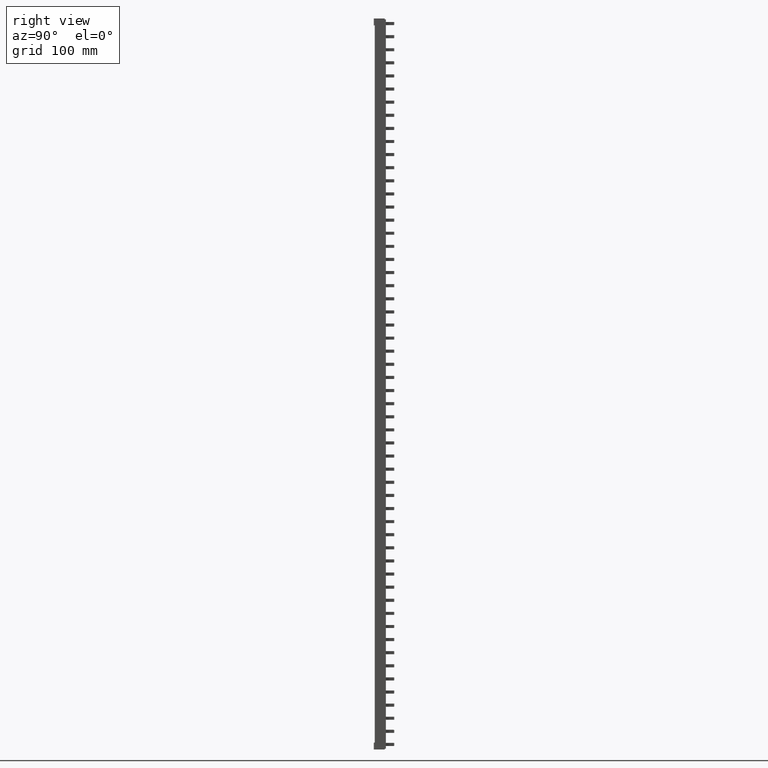
[diagram: clean part render]
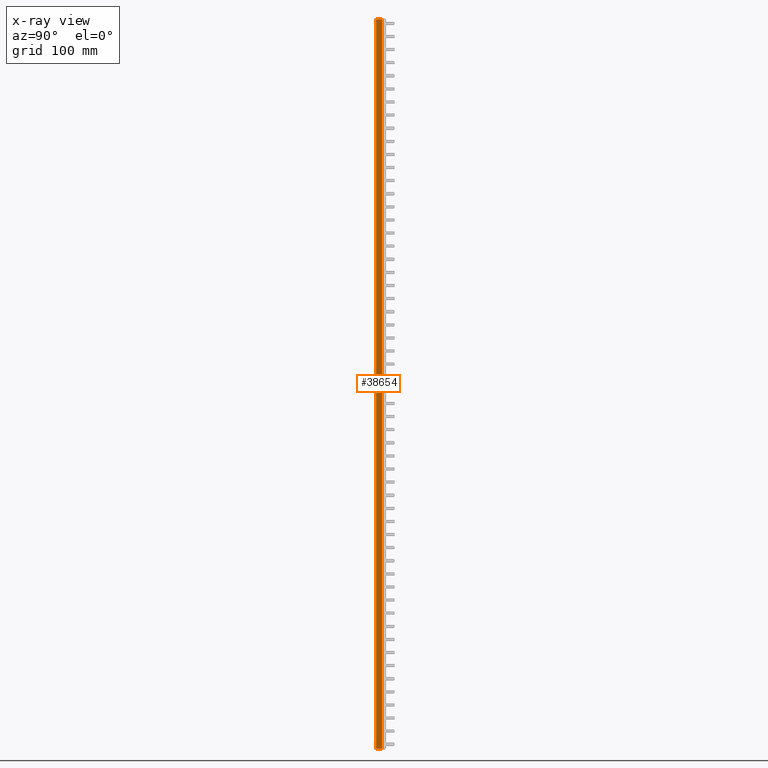
[diagram: x-ray — body ghosted, one internal face saturated and labeled with its STEP entity id]
A machine part, right view, then the same camera in x-ray: the body is ghosted and one INTERNAL B-rep face — a face not visible from any outside direction — is saturated and labeled: STEP entity #38654.
In plain terms, the highlighted planar face has unit normal (-1, 0, 0).
Its self-contained STEP definition (entity closure, byte-faithful):
#3184 = EDGE_CURVE ( 'NONE', #24175, #24116, #32676, .T. ) ;
#3199 = EDGE_CURVE ( 'NONE', #24155, #24175, #32687, .T. ) ;
#3212 = EDGE_CURVE ( 'NONE', #24116, #24139, #32704, .T. ) ;
#3233 = EDGE_CURVE ( 'NONE', #24139, #24155, #32724, .T. ) ;
#17052 = EDGE_LOOP ( 'NONE', ( #22792, #22868, #22827, #22810 ) ) ;
#22792 = ORIENTED_EDGE ( 'NONE', *, *, #3212, .T. ) ;
#22810 = ORIENTED_EDGE ( 'NONE', *, *, #3184, .T. ) ;
#22827 = ORIENTED_EDGE ( 'NONE', *, *, #3199, .T. ) ;
#22868 = ORIENTED_EDGE ( 'NONE', *, *, #3233, .T. ) ;
#24116 = VERTEX_POINT ( 'NONE', #80458 ) ;
#24139 = VERTEX_POINT ( 'NONE', #80615 ) ;
#24155 = VERTEX_POINT ( 'NONE', #80530 ) ;
#24175 = VERTEX_POINT ( 'NONE', #80621 ) ;
#32676 = LINE ( 'NONE', #32677, #66709 ) ;
#32677 = CARTESIAN_POINT ( 'NONE',  ( 5.599999999999383200, 1.799999999999940500, -769.8000000000018900 ) ) ;
#32683 = DIRECTION ( 'NONE',  ( 0.0000000000000000000, 0.0000000000000000000, 1.000000000000000000 ) ) ;
#32687 = LINE ( 'NONE', #32710, #66734 ) ;
#32691 = DIRECTION ( 'NONE',  ( -0.0000000000000000000, -1.000000000000000000, 0.0000000000000000000 ) ) ;
#32693 = DIRECTION ( 'NONE',  ( -0.0000000000000000000, -0.0000000000000000000, -1.000000000000000000 ) ) ;
#32698 = CARTESIAN_POINT ( 'NONE',  ( 5.599999999999383200, 1.799999999999940500, 217.7999999999999800 ) ) ;
#32704 = LINE ( 'NONE', #32698, #66751 ) ;
#32710 = CARTESIAN_POINT ( 'NONE',  ( 5.599999999999383200, 9.799999999999947400, 217.7999999999999800 ) ) ;
#32724 = LINE ( 'NONE', #32755, #66742 ) ;
#32754 = DIRECTION ( 'NONE',  ( 0.0000000000000000000, 1.000000000000000000, -0.0000000000000000000 ) ) ;
#32755 = CARTESIAN_POINT ( 'NONE',  ( 5.599999999999383200, 1.799999999999940500, 217.7999999999990200 ) ) ;
#35668 = AXIS2_PLACEMENT_3D ( 'NONE', #50184, #50198, #50189 ) ;
#38654 = ADVANCED_FACE ( 'NONE', ( #50168 ), #50163, .T. ) ;
#50163 = PLANE ( 'NONE',  #35668 ) ;
#50168 = FACE_OUTER_BOUND ( 'NONE', #17052, .T. ) ;
#50184 = CARTESIAN_POINT ( 'NONE',  ( 5.599999999999383200, 1.799999999999940500, 217.7999999999999800 ) ) ;
#50189 = DIRECTION ( 'NONE',  ( 0.0000000000000000000, 0.0000000000000000000, 1.000000000000000000 ) ) ;
#50198 = DIRECTION ( 'NONE',  ( -1.000000000000000000, 0.0000000000000000000, 0.0000000000000000000 ) ) ;
#66709 = VECTOR ( 'NONE', #32691, 1000.000000000000000 ) ;
#66734 = VECTOR ( 'NONE', #32693, 1000.000000000000000 ) ;
#66742 = VECTOR ( 'NONE', #32754, 1000.000000000000000 ) ;
#66751 = VECTOR ( 'NONE', #32683, 1000.000000000000000 ) ;
#80458 = CARTESIAN_POINT ( 'NONE',  ( 5.599999999999383200, 1.799999999999940500, -769.8000000000028000 ) ) ;
#80530 = CARTESIAN_POINT ( 'NONE',  ( 5.599999999999383200, 9.799999999999947400, 217.7999999999973400 ) ) ;
#80615 = CARTESIAN_POINT ( 'NONE',  ( 5.599999999999383200, 1.799999999999940500, 217.7999999999973100 ) ) ;
#80621 = CARTESIAN_POINT ( 'NONE',  ( 5.599999999999383200, 9.799999999999947400, -769.8000000000024600 ) ) ;